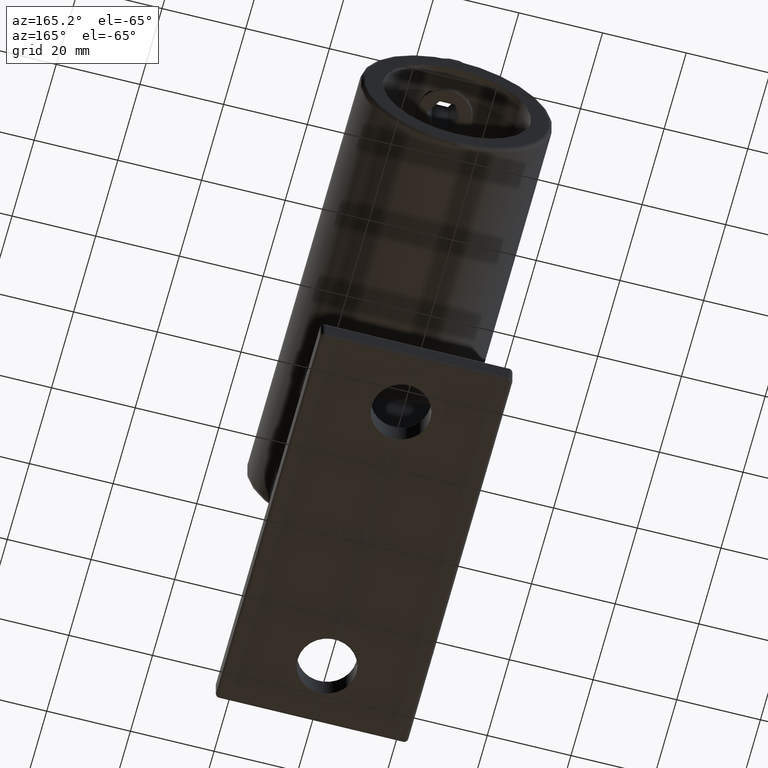
[diagram: clean part render]
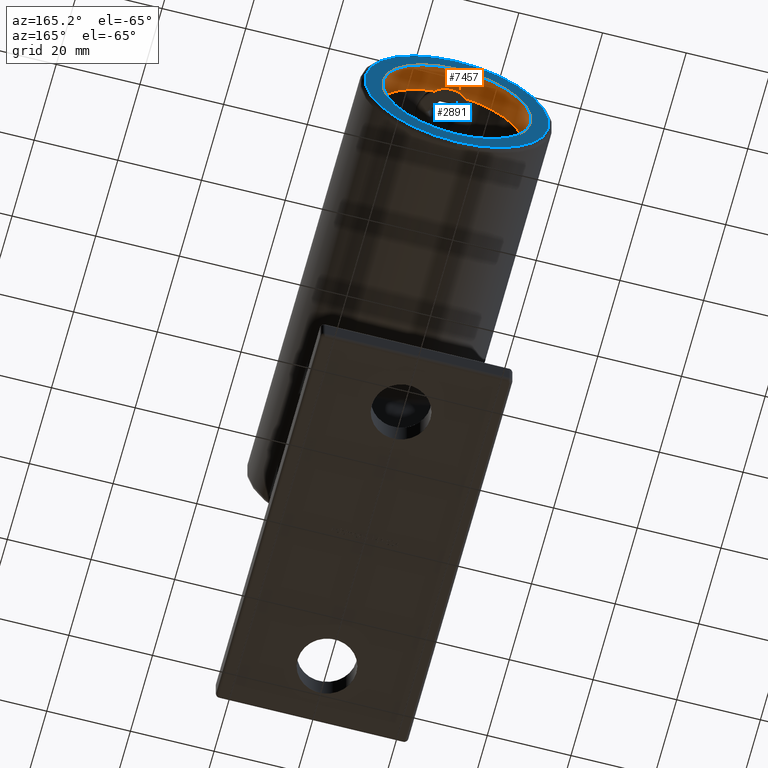
[diagram: same view with the hole feature highlighted: cylindrical wall and planar end face, labeled with their STEP entity ids]
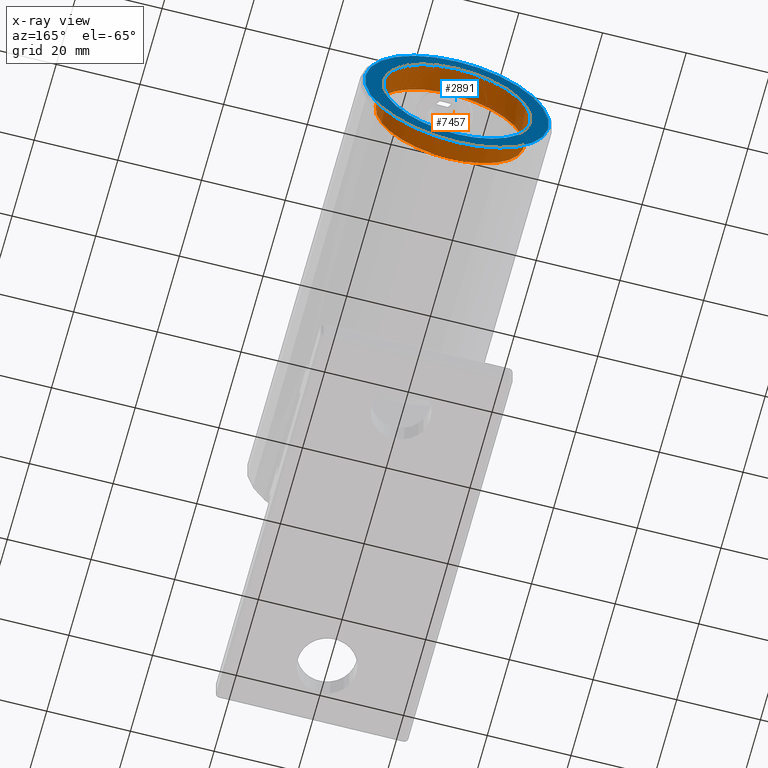
[diagram: x-ray of the same camera — body ghosted, the hole faces saturated]
A machine part, auxiliary view. The highlighted faces form one hole feature of diameter 35.5 mm: the cylindrical wall (entity #7457, orange) and its adjacent planar end face (entity #2891, blue) — they share a circular edge in the B-rep.
The next image is the same camera in x-ray (body ghosted, the hole faces saturated) — the bore reads through the body.
Wall:
#1384 = CARTESIAN_POINT ( 'NONE',  ( 0.000000000000000000, 83.99999999999998579, 47.25000000000000000 ) ) ;
#1417 = CARTESIAN_POINT ( 'NONE',  ( 0.000000000000000000, 83.99999999999998579, 65.00000000000000000 ) ) ;
#1431 = CARTESIAN_POINT ( 'NONE',  ( 0.000000000000000000, 77.49999999999998579, 65.00000000000000000 ) ) ;
#1711 = VERTEX_POINT ( 'NONE', #13569 ) ;
#1971 = B_SPLINE_CURVE_WITH_KNOTS ( 'NONE', 3,
 ( #9441, #6921, #8153, #13123, #5629, #11831, #11880, #13074, #5732, #3309, #5672, #15544 ),
 .UNSPECIFIED., .F., .F.,
 ( 4, 2, 2, 2, 2, 4 ),
 ( 0.007111128128418352755, 0.007656017251411208896, 0.008200906374404064170, 0.009290684620389776452, 0.01038046286637548873, 0.01147024111236120275 ),
 .UNSPECIFIED. ) ;
#2162 = EDGE_CURVE ( 'NONE', #14034, #14034, #10564, .T. ) ;
#2189 = FACE_OUTER_BOUND ( 'NONE', #12528, .T. ) ;
#3309 = CARTESIAN_POINT ( 'NONE',  ( -1.447657998286671077, 77.73119282420590537, 82.69449174879007103 ) ) ;
#3936 = VERTEX_POINT ( 'NONE', #4517 ) ;
#4446 = DIRECTION ( 'NONE',  ( 0.000000000000000000, -1.000000000000000000, 0.000000000000000000 ) ) ;
#4517 = CARTESIAN_POINT ( 'NONE',  ( 2.135415650406248922, 77.49999999999998579, 82.62108112460754228 ) ) ;
#5186 = DIRECTION ( 'NONE',  ( -0.000000000000000000, -1.000000000000000000, -0.000000000000000000 ) ) ;
#5226 = DIRECTION ( 'NONE',  ( 0.000000000000000000, 0.000000000000000000, -1.000000000000000000 ) ) ;
#5429 = EDGE_LOOP ( 'NONE', ( #6307 ) ) ;
#5629 = CARTESIAN_POINT ( 'NONE',  ( 1.264651027529821947, 77.76575313761853181, 82.70580143484149005 ) ) ;
#5672 = CARTESIAN_POINT ( 'NONE',  ( -1.796031063893039015, 77.63176857409943921, 82.66220954075988914 ) ) ;
#5732 = CARTESIAN_POINT ( 'NONE',  ( -0.7327647120223762522, 77.86560659651220817, 82.73848380794758839 ) ) ;
#6307 = ORIENTED_EDGE ( 'NONE', *, *, #2162, .F. ) ;
#6432 = CIRCLE ( 'NONE', #15810, 17.75000000000000355 ) ;
#6921 = CARTESIAN_POINT ( 'NONE',  ( 1.967145934624941583, 77.56533196083070436, 82.64147293723401333 ) ) ;
#7457 = ADVANCED_FACE ( 'NONE', ( #2189, #12015 ), #8948, .F. ) ;
#8153 = CARTESIAN_POINT ( 'NONE',  ( 1.795301490674551692, 77.62318677459047933, 82.65985492068033125 ) ) ;
#8223 = AXIS2_PLACEMENT_3D ( 'NONE', #13015, #4446, #11787 ) ;
#8786 = DIRECTION ( 'NONE',  ( 0.000000000000000000, 0.000000000000000000, 1.000000000000000000 ) ) ;
#8948 = CYLINDRICAL_SURFACE ( 'NONE', #8223, 17.75000000000000355 ) ;
#9311 = EDGE_CURVE ( 'NONE', #1711, #3936, #6432, .T. ) ;
#9441 = CARTESIAN_POINT ( 'NONE',  ( 2.135415650406248922, 77.49999999999998579, 82.62108112460754228 ) ) ;
#10564 = CIRCLE ( 'NONE', #13165, 17.75000000000000355 ) ;
#10837 = ORIENTED_EDGE ( 'NONE', *, *, #9311, .T. ) ;
#11129 = DIRECTION ( 'NONE',  ( 0.000000000000000000, -1.000000000000000000, 0.000000000000000000 ) ) ;
#11787 = DIRECTION ( 'NONE',  ( 0.000000000000000000, 0.000000000000000000, -1.000000000000000000 ) ) ;
#11831 = CARTESIAN_POINT ( 'NONE',  ( 0.7269384510956209411, 77.86639295904042513, 82.73874423893035157 ) ) ;
#11880 = CARTESIAN_POINT ( 'NONE',  ( 0.3655978807260402696, 77.89991399185073817, 82.74997141137646395 ) ) ;
#11924 = EDGE_CURVE ( 'NONE', #3936, #1711, #1971, .T. ) ;
#12015 = FACE_OUTER_BOUND ( 'NONE', #5429, .T. ) ;
#12528 = EDGE_LOOP ( 'NONE', ( #15154, #10837 ) ) ;
#13015 = CARTESIAN_POINT ( 'NONE',  ( 0.000000000000000000, 83.99999999999998579, 65.00000000000000000 ) ) ;
#13074 = CARTESIAN_POINT ( 'NONE',  ( -0.3628166008941002274, 77.90008568037305281, 82.75002847967259356 ) ) ;
#13123 = CARTESIAN_POINT ( 'NONE',  ( 1.444163735639452772, 77.72343673407958420, 82.69203138044241541 ) ) ;
#13165 = AXIS2_PLACEMENT_3D ( 'NONE', #1417, #11129, #5226 ) ;
#13569 = CARTESIAN_POINT ( 'NONE',  ( -2.135415650406248922, 77.49999999999998579, 82.62108112460754228 ) ) ;
#14034 = VERTEX_POINT ( 'NONE', #1384 ) ;
#15154 = ORIENTED_EDGE ( 'NONE', *, *, #11924, .T. ) ;
#15544 = CARTESIAN_POINT ( 'NONE',  ( -2.135415650406248922, 77.49999999999998579, 82.62108112460754228 ) ) ;
#15810 = AXIS2_PLACEMENT_3D ( 'NONE', #1431, #5186, #8786 ) ;
End face:
#604 = FACE_BOUND ( 'NONE', #11824, .T. ) ;
#670 = DIRECTION ( 'NONE',  ( 0.000000000000000000, -1.000000000000000000, 0.000000000000000000 ) ) ;
#736 = ORIENTED_EDGE ( 'NONE', *, *, #14320, .T. ) ;
#1384 = CARTESIAN_POINT ( 'NONE',  ( 0.000000000000000000, 83.99999999999998579, 47.25000000000000000 ) ) ;
#1417 = CARTESIAN_POINT ( 'NONE',  ( 0.000000000000000000, 83.99999999999998579, 65.00000000000000000 ) ) ;
#1563 = FACE_OUTER_BOUND ( 'NONE', #4566, .T. ) ;
#2162 = EDGE_CURVE ( 'NONE', #14034, #14034, #10564, .T. ) ;
#2891 = ADVANCED_FACE ( 'NONE', ( #1563, #604 ), #15296, .F. ) ;
#4566 = EDGE_LOOP ( 'NONE', ( #736 ) ) ;
#5226 = DIRECTION ( 'NONE',  ( 0.000000000000000000, 0.000000000000000000, -1.000000000000000000 ) ) ;
#5519 = CARTESIAN_POINT ( 'NONE',  ( 0.000000000000000000, 83.99999999999998579, 65.00000000000000000 ) ) ;
#7360 = CARTESIAN_POINT ( 'NONE',  ( 0.000000000000000000, 83.99999999999998579, 43.00000000000000000 ) ) ;
#8637 = VERTEX_POINT ( 'NONE', #7360 ) ;
#9258 = CIRCLE ( 'NONE', #12006, 22.00000000000000000 ) ;
#10564 = CIRCLE ( 'NONE', #13165, 17.75000000000000355 ) ;
#11129 = DIRECTION ( 'NONE',  ( 0.000000000000000000, -1.000000000000000000, 0.000000000000000000 ) ) ;
#11824 = EDGE_LOOP ( 'NONE', ( #12225 ) ) ;
#12006 = AXIS2_PLACEMENT_3D ( 'NONE', #5519, #14295, #14127 ) ;
#12225 = ORIENTED_EDGE ( 'NONE', *, *, #2162, .T. ) ;
#12777 = CARTESIAN_POINT ( 'NONE',  ( 0.000000000000000000, 83.99999999999998579, 65.00000000000000000 ) ) ;
#13165 = AXIS2_PLACEMENT_3D ( 'NONE', #1417, #11129, #5226 ) ;
#14002 = DIRECTION ( 'NONE',  ( 0.000000000000000000, -0.000000000000000000, -1.000000000000000000 ) ) ;
#14034 = VERTEX_POINT ( 'NONE', #1384 ) ;
#14127 = DIRECTION ( 'NONE',  ( 0.000000000000000000, 0.000000000000000000, -1.000000000000000000 ) ) ;
#14295 = DIRECTION ( 'NONE',  ( -0.000000000000000000, 1.000000000000000000, -0.000000000000000000 ) ) ;
#14320 = EDGE_CURVE ( 'NONE', #8637, #8637, #9258, .T. ) ;
#14500 = AXIS2_PLACEMENT_3D ( 'NONE', #12777, #670, #14002 ) ;
#15296 = PLANE ( 'NONE',  #14500 ) ;